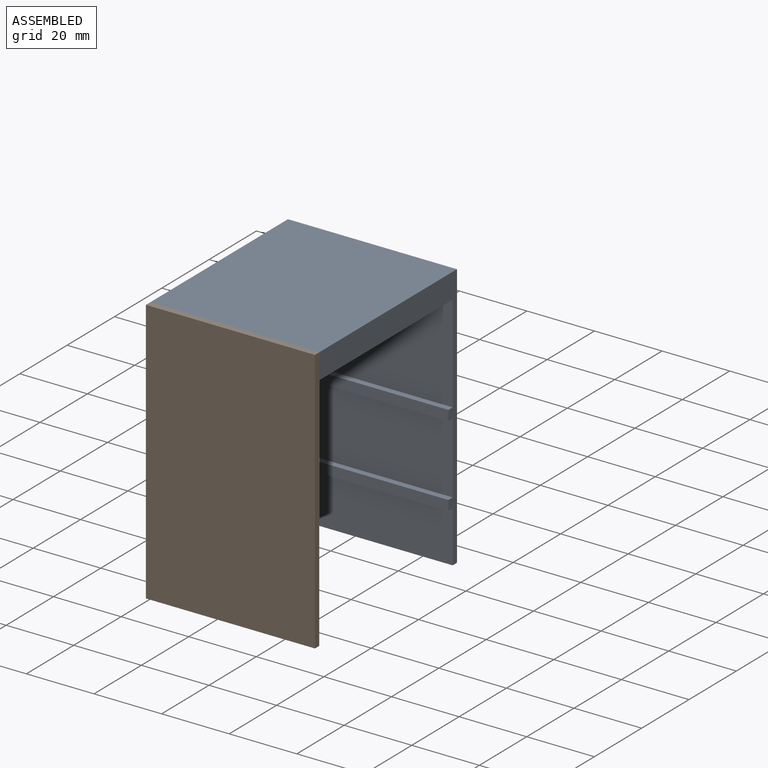
[diagram: assembled view]
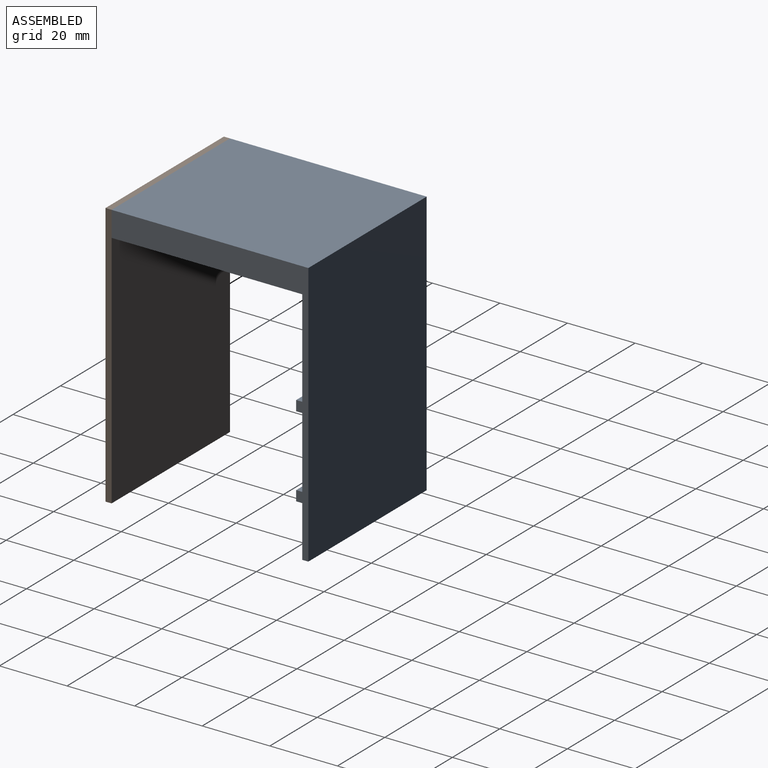
[diagram: assembled view, second angle]
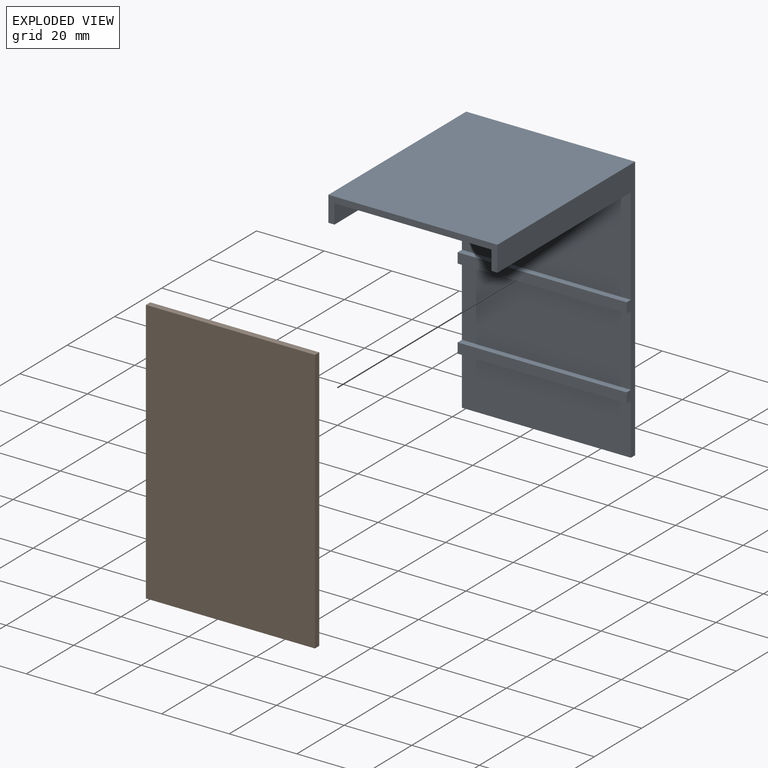
[diagram: exploded view]
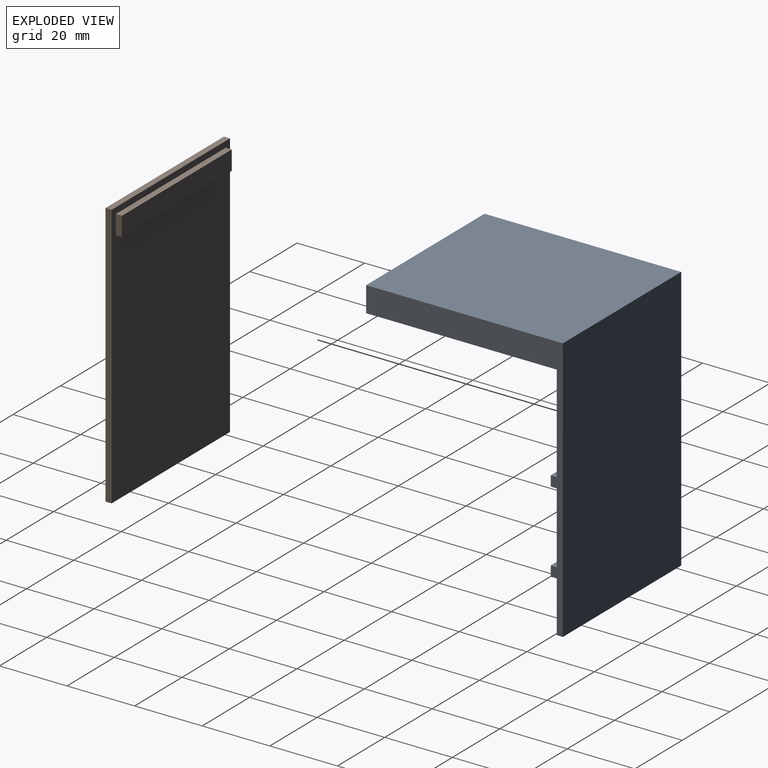
[diagram: exploded view, second angle]
ASSEMBLY  parts=2 mates=2
PART A: 20 faces, bbox 50x58.2x78.5 mm
  f0: plane 50x28.75mm, normal (0,-1,0), area 1437.5mm2, adj f3,f5,f11,f14
  f1: plane 50x21.09mm, normal (0,-1,0), area 1054.5mm2, adj f3,f5,f9,f12
  f2: plane 50x1.8mm, normal (0,0,-1), area 90mm2, adj f3,f5,f6,f7
  f3: plane 78.5x58.2mm, normal (1,0,0), area 575.1mm2, adj f0,f1,f2,f4,f6,f7,f8,f9
  f4: plane 58.2x50mm, normal (0,0,1), area 2910mm2, adj f3,f5,f7,f16
  f5: plane 78.5x58.2mm, normal (-1,0,0), area 575.1mm2, adj f0,f1,f2,f4,f6,f7,f8,f9
  f6: plane 50x15.16mm, normal (0,-1,0), area 758mm2, adj f2,f3,f5,f8
  f7: plane 78.5x50mm, normal (0,1,0), area 3925mm2, adj f2,f3,f4,f5
  f8: plane 50x1.8mm, normal (0,0,-1), area 90mm2, adj f3,f5,f6,f10
  f9: plane 50x1.8mm, normal (0,0,1), area 90mm2, adj f1,f3,f5,f10
  f10: plane 50x3mm, normal (0,-1,0), area 150mm2, adj f3,f5,f8,f9
  f11: plane 50x1.8mm, normal (0,0,1), area 90mm2, adj f0,f3,f5,f13
  f12: plane 50x1.8mm, normal (0,0,-1), area 90mm2, adj f1,f3,f5,f13
  f13: plane 50x3mm, normal (0,-1,0), area 150mm2, adj f3,f5,f11,f12
  f14: plane 56.4x50mm, normal (0,0,-1), area 286.6mm2, adj f0,f3,f5,f15,f16,f18,f19
  f15: plane 46.4x5.7mm, normal (0,-1,0), area 264.5mm2, adj f14,f17,f18,f19
  f16: plane 50x7.5mm, normal (0,-1,0), area 110.5mm2, adj f3,f4,f5,f14,f17,f18,f19
  f17: plane 54.6x46.4mm, normal (0,0,-1), area 2533.4mm2, adj f15,f16,f18,f19
  f18: plane 54.6x5.7mm, normal (1,0,0), area 311.2mm2, adj f14,f15,f16,f17
  f19: plane 54.6x5.7mm, normal (-1,0,0), area 311.2mm2, adj f14,f15,f16,f17
PART B: 11 faces, bbox 50x3.6x78.5 mm
  f0: plane 78.5x50mm, normal (0,1,0), area 3660.5mm2, adj f1,f2,f3,f4,f6,f7,f8,f9
  f1: plane 50x1.8mm, normal (0,0,-1), area 90mm2, adj f0,f2,f4,f5
  f2: plane 78.5x1.8mm, normal (1,0,0), area 141.3mm2, adj f0,f1,f3,f5
  f3: plane 50x1.8mm, normal (0,0,1), area 90mm2, adj f0,f2,f4,f5
  f4: plane 78.5x1.8mm, normal (-1,0,0), area 141.3mm2, adj f0,f1,f3,f5
  f5: plane 78.5x50mm, normal (0,-1,0), area 3925mm2, adj f1,f2,f3,f4
  f6: plane 5.7x1.8mm, normal (-1,0,0), area 10.3mm2, adj f0,f7,f9,f10
  f7: plane 46.4x1.8mm, normal (0,0,1), area 83.5mm2, adj f0,f6,f8,f10
  f8: plane 5.7x1.8mm, normal (1,0,0), area 10.3mm2, adj f0,f7,f9,f10
  f9: plane 46.4x1.8mm, normal (0,0,-1), area 83.5mm2, adj f0,f6,f8,f10
  f10: plane 46.4x5.7mm, normal (0,1,0), area 264.5mm2, adj f6,f7,f8,f9
PLACE A rot(axis=(0,-0.93,0.36),0deg) t=(-14,-50.92,-4.18)mm
PLACE B t=(-14,-109.12,-4.18)mm
MATE planar B.f0 <-> A.f16  axis (0,1,0) through (-14,-109.12,-6.68)mm
MATE planar B.f3 <-> A.f4  axis (0,0,1) through (-14,-110.02,35.07)mm
